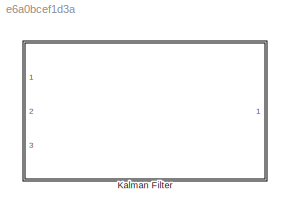
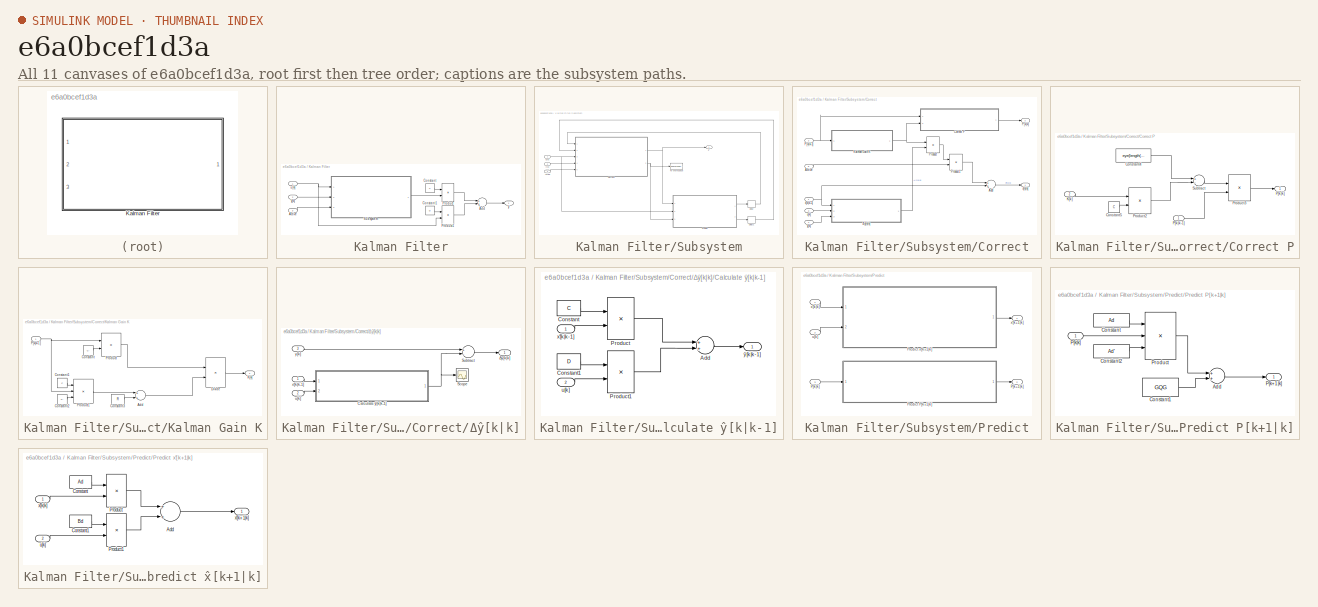
[diagram: thumbnail index - all 11 canvases of the model, root first then tree order]
MODEL slx_e6a0bcef1d3a
KIND model
CONFIG AbsTol = auto
CONFIG EnableMultiTasking = off
CONFIG FixedStep = auto
CONFIG MaxStep = auto
CONFIG MinStep = auto
CONFIG RelTol = 1e-3
CONFIG SampleTimeConstraint = Unconstrained
CONFIG Solver = VariableStepAuto
CONFIG SolverName = VariableStepAuto
CONFIG StartTime = 0.0
CONFIG StopTime = 10.0
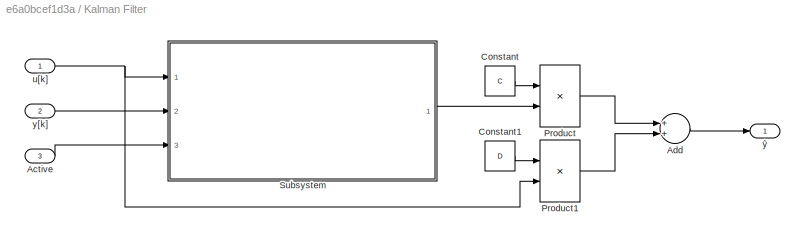
BLOCK [SubSystem] Kalman Filter
  Ports = [3, 1]
  RequestExecContextInheritance = off
BLOCK [Inport] Kalman Filter/Active
  IconDisplay = Port number
  Port = 3
BLOCK [Sum] Kalman Filter/Add
  InputSameDT = off
  OutDataTypeStr = Inherit: Inherit via internal rule
  Ports = [2, 1]
  SaturateOnIntegerOverflow = off
BLOCK [Constant] Kalman Filter/Constant
  Value = C
  VectorParams1D = off
BLOCK [Constant] Kalman Filter/Constant1
  Value = D
  VectorParams1D = off
BLOCK [Product] Kalman Filter/Product
  InputSameDT = off
  Multiplication = Matrix(*)
  OutDataTypeStr = Inherit: Inherit via internal rule
  Ports = [2, 1]
  RndMeth = Floor
  SaturateOnIntegerOverflow = off
BLOCK [Product] Kalman Filter/Product1
  InputSameDT = off
  Multiplication = Matrix(*)
  OutDataTypeStr = Inherit: Inherit via internal rule
  Ports = [2, 1]
  RndMeth = Floor
  SaturateOnIntegerOverflow = off
BLOCK [SubSystem] Kalman Filter/Subsystem
  Ports = [3, 1]
  RequestExecContextInheritance = off
BLOCK [Inport] Kalman Filter/Subsystem/Active
  IconDisplay = Port number
  Port = 3
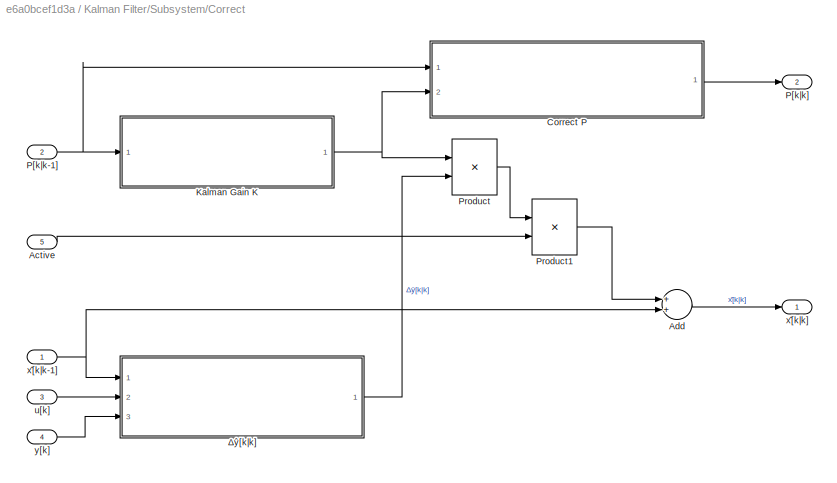
BLOCK [SubSystem] Kalman Filter/Subsystem/Correct
  Ports = [5, 2]
  RequestExecContextInheritance = off
BLOCK [Inport] Kalman Filter/Subsystem/Correct/Active
  IconDisplay = Port number
  Port = 5
BLOCK [Sum] Kalman Filter/Subsystem/Correct/Add
  InputSameDT = off
  OutDataTypeStr = Inherit: Inherit via internal rule
  Ports = [2, 1]
  SaturateOnIntegerOverflow = off
BLOCK [SubSystem] Kalman Filter/Subsystem/Correct/Correct P
  Ports = [2, 1]
  RequestExecContextInheritance = off
BLOCK [Constant] Kalman Filter/Subsystem/Correct/Correct P/Constant4
  Value = eye(length(C))
  VectorParams1D = off
BLOCK [Constant] Kalman Filter/Subsystem/Correct/Correct P/Constant5
  Value = C
  VectorParams1D = off
BLOCK [Inport] Kalman Filter/Subsystem/Correct/Correct P/K[k]
  IconDisplay = Port number
  Port = 2
BLOCK [Inport] Kalman Filter/Subsystem/Correct/Correct P/P[k|k-1]
  IconDisplay = Port number
BLOCK [Outport] Kalman Filter/Subsystem/Correct/Correct P/P[k|k]
  IconDisplay = Port number
BLOCK [Product] Kalman Filter/Subsystem/Correct/Correct P/Product2
  InputSameDT = off
  Multiplication = Matrix(*)
  OutDataTypeStr = Inherit: Inherit via internal rule
  Ports = [2, 1]
  RndMeth = Floor
  SaturateOnIntegerOverflow = off
BLOCK [Product] Kalman Filter/Subsystem/Correct/Correct P/Product3
  InputSameDT = off
  Multiplication = Matrix(*)
  OutDataTypeStr = Inherit: Inherit via internal rule
  Ports = [2, 1]
  RndMeth = Floor
  SaturateOnIntegerOverflow = off
BLOCK [Sum] Kalman Filter/Subsystem/Correct/Correct P/Subtract
  InputSameDT = off
  Inputs = +-
  OutDataTypeStr = Inherit: Inherit via internal rule
  Ports = [2, 1]
  SaturateOnIntegerOverflow = off
BLOCK [SubSystem] Kalman Filter/Subsystem/Correct/Kalman Gain K
  Ports = [1, 1]
  RequestExecContextInheritance = off
BLOCK [Sum] Kalman Filter/Subsystem/Correct/Kalman Gain K/Add
  InputSameDT = off
  OutDataTypeStr = Inherit: Inherit via internal rule
  Ports = [2, 1]
  SaturateOnIntegerOverflow = off
BLOCK [Constant] Kalman Filter/Subsystem/Correct/Kalman Gain K/Constant
  Value = C'
  VectorParams1D = off
BLOCK [Constant] Kalman Filter/Subsystem/Correct/Kalman Gain K/Constant1
  Value = C
  VectorParams1D = off
BLOCK [Constant] Kalman Filter/Subsystem/Correct/Kalman Gain K/Constant2
  Value = C'
  VectorParams1D = off
BLOCK [Constant] Kalman Filter/Subsystem/Correct/Kalman Gain K/Constant3
  Value = R
  VectorParams1D = off
BLOCK [Product] Kalman Filter/Subsystem/Correct/Kalman Gain K/Divide
  InputSameDT = off
  Inputs = */
  Multiplication = Matrix(*)
  OutDataTypeStr = Inherit: Inherit via internal rule
  Ports = [2, 1]
  RndMeth = Floor
  SaturateOnIntegerOverflow = off
BLOCK [Outport] Kalman Filter/Subsystem/Correct/Kalman Gain K/K[k]
  IconDisplay = Port number
BLOCK [Inport] Kalman Filter/Subsystem/Correct/Kalman Gain K/P[k|k-1]
  IconDisplay = Port number
BLOCK [Product] Kalman Filter/Subsystem/Correct/Kalman Gain K/Product
  InputSameDT = off
  Multiplication = Matrix(*)
  OutDataTypeStr = Inherit: Inherit via internal rule
  Ports = [2, 1]
  RndMeth = Floor
  SaturateOnIntegerOverflow = off
BLOCK [Product] Kalman Filter/Subsystem/Correct/Kalman Gain K/Product1
  InputSameDT = off
  Inputs = 3
  Multiplication = Matrix(*)
  OutDataTypeStr = Inherit: Inherit via internal rule
  Ports = [3, 1]
  RndMeth = Floor
  SaturateOnIntegerOverflow = off
BLOCK [Inport] Kalman Filter/Subsystem/Correct/P[k|k-1]
  IconDisplay = Port number
  Port = 2
BLOCK [Outport] Kalman Filter/Subsystem/Correct/P[k|k]
  IconDisplay = Port number
  Port = 2
BLOCK [Product] Kalman Filter/Subsystem/Correct/Product
  InputSameDT = off
  Multiplication = Matrix(*)
  OutDataTypeStr = Inherit: Inherit via internal rule
  Ports = [2, 1]
  RndMeth = Floor
  SaturateOnIntegerOverflow = off
BLOCK [Product] Kalman Filter/Subsystem/Correct/Product1
  InputSameDT = off
  Multiplication = Matrix(*)
  OutDataTypeStr = Inherit: Inherit via internal rule
  Ports = [2, 1]
  RndMeth = Floor
  SaturateOnIntegerOverflow = off
BLOCK [Inport] Kalman Filter/Subsystem/Correct/u[k]
  IconDisplay = Port number
  Port = 3
BLOCK [Inport] Kalman Filter/Subsystem/Correct/x̂[k|k-1]
  IconDisplay = Port number
BLOCK [Outport] Kalman Filter/Subsystem/Correct/x̂[k|k]
  IconDisplay = Port number
BLOCK [Inport] Kalman Filter/Subsystem/Correct/y[k]
  IconDisplay = Port number
  Port = 4
BLOCK [SubSystem] Kalman Filter/Subsystem/Correct/Δŷ[k|k]
  Ports = [3, 1]
  RequestExecContextInheritance = off
BLOCK [SubSystem] Kalman Filter/Subsystem/Correct/Δŷ[k|k]/Calculate ŷ[k|k-1]
  Ports = [2, 1]
  RequestExecContextInheritance = off
BLOCK [Sum] Kalman Filter/Subsystem/Correct/Δŷ[k|k]/Calculate ŷ[k|k-1]/Add
  InputSameDT = off
  OutDataTypeStr = Inherit: Inherit via internal rule
  Ports = [2, 1]
  SaturateOnIntegerOverflow = off
BLOCK [Constant] Kalman Filter/Subsystem/Correct/Δŷ[k|k]/Calculate ŷ[k|k-1]/Constant
  Value = C
  VectorParams1D = off
BLOCK [Constant] Kalman Filter/Subsystem/Correct/Δŷ[k|k]/Calculate ŷ[k|k-1]/Constant1
  Value = D
  VectorParams1D = off
BLOCK [Product] Kalman Filter/Subsystem/Correct/Δŷ[k|k]/Calculate ŷ[k|k-1]/Product
  InputSameDT = off
  Multiplication = Matrix(*)
  OutDataTypeStr = Inherit: Inherit via internal rule
  Ports = [2, 1]
  RndMeth = Floor
  SaturateOnIntegerOverflow = off
BLOCK [Product] Kalman Filter/Subsystem/Correct/Δŷ[k|k]/Calculate ŷ[k|k-1]/Product1
  InputSameDT = off
  Multiplication = Matrix(*)
  OutDataTypeStr = Inherit: Inherit via internal rule
  Ports = [2, 1]
  RndMeth = Floor
  SaturateOnIntegerOverflow = off
BLOCK [Inport] Kalman Filter/Subsystem/Correct/Δŷ[k|k]/Calculate ŷ[k|k-1]/u[k]
  IconDisplay = Port number
  Port = 2
BLOCK [Inport] Kalman Filter/Subsystem/Correct/Δŷ[k|k]/Calculate ŷ[k|k-1]/x̂[k|k-1]
  IconDisplay = Port number
BLOCK [Outport] Kalman Filter/Subsystem/Correct/Δŷ[k|k]/Calculate ŷ[k|k-1]/ŷ[k|k-1]
  IconDisplay = Port number
BLOCK [Scope] Kalman Filter/Subsystem/Correct/Δŷ[k|k]/Scope
  Floating = off
  NumInputPorts = 1
  Ports = [1]
  ScopeSpecificationString = Simulink.scopes.TimeScopeBlockCfg('CurrentConfiguration', extmgr.ConfigurationSet(extmgr.Configuration('Core','General UI',true),extmgr.Configuration('Core','Source UI',true),extmgr.Configuration('Sources','WiredSimulink',true,'DataLoggingVariableName','ScopeData2'),extmgr.Configuration('Visuals','Time Domain',true,'SerializedDisplays',{struct('MinYLimReal','-244.28559','MaxYLimReal','99.36507','Y...<+1418ch>
BLOCK [Sum] Kalman Filter/Subsystem/Correct/Δŷ[k|k]/Subtract
  InputSameDT = off
  Inputs = +-
  OutDataTypeStr = Inherit: Inherit via internal rule
  Ports = [2, 1]
  SaturateOnIntegerOverflow = off
BLOCK [Inport] Kalman Filter/Subsystem/Correct/Δŷ[k|k]/u[k]
  IconDisplay = Port number
  Port = 2
BLOCK [Inport] Kalman Filter/Subsystem/Correct/Δŷ[k|k]/x̂[k|k-1]
  IconDisplay = Port number
BLOCK [Inport] Kalman Filter/Subsystem/Correct/Δŷ[k|k]/y[k]
  IconDisplay = Port number
  Port = 3
BLOCK [Outport] Kalman Filter/Subsystem/Correct/Δŷ[k|k]/Δŷ[k|k]
  IconDisplay = Port number
BLOCK [Delay] Kalman Filter/Subsystem/Delay
  DelayLength = 1
  InitialCondition = x0
  InputPortMap = u0
  Ports = [1, 1]
BLOCK [Delay] Kalman Filter/Subsystem/Delay1
  DelayLength = 1
  InitialCondition = P0
  InputPortMap = u0
  Ports = [1, 1]
BLOCK [SubSystem] Kalman Filter/Subsystem/Predict
  Ports = [3, 2]
  RequestExecContextInheritance = off
BLOCK [Outport] Kalman Filter/Subsystem/Predict/P[k+1|k]
  IconDisplay = Port number
  Port = 2
BLOCK [Inport] Kalman Filter/Subsystem/Predict/P[k|k]
  IconDisplay = Port number
  Port = 3
BLOCK [SubSystem] Kalman Filter/Subsystem/Predict/Predict P[k+1|k]
  Ports = [1, 1]
  RequestExecContextInheritance = off
BLOCK [Sum] Kalman Filter/Subsystem/Predict/Predict P[k+1|k]/Add
  InputSameDT = off
  OutDataTypeStr = Inherit: Inherit via internal rule
  Ports = [2, 1]
  SaturateOnIntegerOverflow = off
BLOCK [Constant] Kalman Filter/Subsystem/Predict/Predict P[k+1|k]/Constant
  Value = Ad
  VectorParams1D = off
BLOCK [Constant] Kalman Filter/Subsystem/Predict/Predict P[k+1|k]/Constant1
  Value = GQG
  VectorParams1D = off
BLOCK [Constant] Kalman Filter/Subsystem/Predict/Predict P[k+1|k]/Constant2
  Value = Ad'
  VectorParams1D = off
BLOCK [Outport] Kalman Filter/Subsystem/Predict/Predict P[k+1|k]/P[k+1|k]
  IconDisplay = Port number
BLOCK [Inport] Kalman Filter/Subsystem/Predict/Predict P[k+1|k]/P[k|k]
  IconDisplay = Port number
BLOCK [Product] Kalman Filter/Subsystem/Predict/Predict P[k+1|k]/Product
  InputSameDT = off
  Inputs = 3
  Multiplication = Matrix(*)
  OutDataTypeStr = Inherit: Inherit via internal rule
  Ports = [3, 1]
  RndMeth = Floor
  SaturateOnIntegerOverflow = off
BLOCK [SubSystem] Kalman Filter/Subsystem/Predict/Predict x̂[k+1|k]
  Ports = [2, 1]
  RequestExecContextInheritance = off
BLOCK [Sum] Kalman Filter/Subsystem/Predict/Predict x̂[k+1|k]/Add
  InputSameDT = off
  OutDataTypeStr = Inherit: Inherit via internal rule
  Ports = [2, 1]
  SaturateOnIntegerOverflow = off
BLOCK [Constant] Kalman Filter/Subsystem/Predict/Predict x̂[k+1|k]/Constant
  Value = Ad
  VectorParams1D = off
BLOCK [Constant] Kalman Filter/Subsystem/Predict/Predict x̂[k+1|k]/Constant1
  Value = Bd
  VectorParams1D = off
BLOCK [Product] Kalman Filter/Subsystem/Predict/Predict x̂[k+1|k]/Product
  InputSameDT = off
  Multiplication = Matrix(*)
  OutDataTypeStr = Inherit: Inherit via internal rule
  Ports = [2, 1]
  RndMeth = Floor
  SaturateOnIntegerOverflow = off
BLOCK [Product] Kalman Filter/Subsystem/Predict/Predict x̂[k+1|k]/Product1
  InputSameDT = off
  Multiplication = Matrix(*)
  OutDataTypeStr = Inherit: Inherit via internal rule
  Ports = [2, 1]
  RndMeth = Floor
  SaturateOnIntegerOverflow = off
BLOCK [Inport] Kalman Filter/Subsystem/Predict/Predict x̂[k+1|k]/u[k]
  IconDisplay = Port number
  Port = 2
BLOCK [Outport] Kalman Filter/Subsystem/Predict/Predict x̂[k+1|k]/x̂[k+1|k]
  IconDisplay = Port number
BLOCK [Inport] Kalman Filter/Subsystem/Predict/Predict x̂[k+1|k]/x̂[k|k]
  IconDisplay = Port number
BLOCK [Inport] Kalman Filter/Subsystem/Predict/u[k]
  IconDisplay = Port number
  Port = 2
BLOCK [Outport] Kalman Filter/Subsystem/Predict/x̂[k+1|k]
  IconDisplay = Port number
BLOCK [Inport] Kalman Filter/Subsystem/Predict/x̂[k|k]
  IconDisplay = Port number
BLOCK [ToWorkspace] Kalman Filter/Subsystem/To Workspace
  FixptAsFi = on
  MaxDataPoints = 1
  Ports = [1]
  SampleTime = -1
  VariableName = Variance
BLOCK [Inport] Kalman Filter/Subsystem/u[k]
  IconDisplay = Port number
BLOCK [Outport] Kalman Filter/Subsystem/x̂
  IconDisplay = Port number
BLOCK [Inport] Kalman Filter/Subsystem/y[k]
  IconDisplay = Port number
  Port = 2
BLOCK [Inport] Kalman Filter/u[k]
  IconDisplay = Port number
BLOCK [Inport] Kalman Filter/y[k]
  IconDisplay = Port number
  Port = 2
BLOCK [Outport] Kalman Filter/ŷ
  IconDisplay = Port number
LINE Kalman Filter/Active:1 -> Kalman Filter/Subsystem:3
LINE Kalman Filter/Add:1 -> Kalman Filter/ŷ:1
LINE Kalman Filter/Constant1:1 -> Kalman Filter/Product1:1
LINE Kalman Filter/Constant:1 -> Kalman Filter/Product:1
LINE Kalman Filter/Product1:1 -> Kalman Filter/Add:2
LINE Kalman Filter/Product:1 -> Kalman Filter/Add:1
LINE Kalman Filter/Subsystem/Active:1 -> Kalman Filter/Subsystem/Correct:5
LINE Kalman Filter/Subsystem/Correct/Active:1 -> Kalman Filter/Subsystem/Correct/Product1:2
LINE Kalman Filter/Subsystem/Correct/Add:1 -> Kalman Filter/Subsystem/Correct/x̂[k|k]:1
LINE Kalman Filter/Subsystem/Correct/Correct P/Constant4:1 -> Kalman Filter/Subsystem/Correct/Correct P/Subtract:1
LINE Kalman Filter/Subsystem/Correct/Correct P/Constant5:1 -> Kalman Filter/Subsystem/Correct/Correct P/Product2:2
LINE Kalman Filter/Subsystem/Correct/Correct P/K[k]:1 -> Kalman Filter/Subsystem/Correct/Correct P/Product2:1
LINE Kalman Filter/Subsystem/Correct/Correct P/P[k|k-1]:1 -> Kalman Filter/Subsystem/Correct/Correct P/Product3:2
LINE Kalman Filter/Subsystem/Correct/Correct P/Product2:1 -> Kalman Filter/Subsystem/Correct/Correct P/Subtract:2
LINE Kalman Filter/Subsystem/Correct/Correct P/Product3:1 -> Kalman Filter/Subsystem/Correct/Correct P/P[k|k]:1
LINE Kalman Filter/Subsystem/Correct/Correct P/Subtract:1 -> Kalman Filter/Subsystem/Correct/Correct P/Product3:1
LINE Kalman Filter/Subsystem/Correct/Correct P:1 -> Kalman Filter/Subsystem/Correct/P[k|k]:1
LINE Kalman Filter/Subsystem/Correct/Kalman Gain K/Add:1 -> Kalman Filter/Subsystem/Correct/Kalman Gain K/Divide:2
LINE Kalman Filter/Subsystem/Correct/Kalman Gain K/Constant1:1 -> Kalman Filter/Subsystem/Correct/Kalman Gain K/Product1:1
LINE Kalman Filter/Subsystem/Correct/Kalman Gain K/Constant2:1 -> Kalman Filter/Subsystem/Correct/Kalman Gain K/Product1:3
LINE Kalman Filter/Subsystem/Correct/Kalman Gain K/Constant3:1 -> Kalman Filter/Subsystem/Correct/Kalman Gain K/Add:2
LINE Kalman Filter/Subsystem/Correct/Kalman Gain K/Constant:1 -> Kalman Filter/Subsystem/Correct/Kalman Gain K/Product:2
LINE Kalman Filter/Subsystem/Correct/Kalman Gain K/Divide:1 -> Kalman Filter/Subsystem/Correct/Kalman Gain K/K[k]:1
NET Kalman Filter/Subsystem/Correct/Kalman Gain K/P[k|k-1]:1 -> Kalman Filter/Subsystem/Correct/Kalman Gain K/Product1:2, Kalman Filter/Subsystem/Correct/Kalman Gain K/Product:1
LINE Kalman Filter/Subsystem/Correct/Kalman Gain K/Product1:1 -> Kalman Filter/Subsystem/Correct/Kalman Gain K/Add:1
LINE Kalman Filter/Subsystem/Correct/Kalman Gain K/Product:1 -> Kalman Filter/Subsystem/Correct/Kalman Gain K/Divide:1
NET Kalman Filter/Subsystem/Correct/Kalman Gain K:1 -> Kalman Filter/Subsystem/Correct/Correct P:2, Kalman Filter/Subsystem/Correct/Product:1
NET Kalman Filter/Subsystem/Correct/P[k|k-1]:1 -> Kalman Filter/Subsystem/Correct/Correct P:1, Kalman Filter/Subsystem/Correct/Kalman Gain K:1
LINE Kalman Filter/Subsystem/Correct/Product1:1 -> Kalman Filter/Subsystem/Correct/Add:1
LINE Kalman Filter/Subsystem/Correct/Product:1 -> Kalman Filter/Subsystem/Correct/Product1:1
LINE Kalman Filter/Subsystem/Correct/u[k]:1 -> Kalman Filter/Subsystem/Correct/Δŷ[k|k]:2
NET Kalman Filter/Subsystem/Correct/x̂[k|k-1]:1 -> Kalman Filter/Subsystem/Correct/Add:2, Kalman Filter/Subsystem/Correct/Δŷ[k|k]:1
LINE Kalman Filter/Subsystem/Correct/y[k]:1 -> Kalman Filter/Subsystem/Correct/Δŷ[k|k]:3
LINE Kalman Filter/Subsystem/Correct/Δŷ[k|k]/Calculate ŷ[k|k-1]/Add:1 -> Kalman Filter/Subsystem/Correct/Δŷ[k|k]/Calculate ŷ[k|k-1]/ŷ[k|k-1]:1
LINE Kalman Filter/Subsystem/Correct/Δŷ[k|k]/Calculate ŷ[k|k-1]/Constant1:1 -> Kalman Filter/Subsystem/Correct/Δŷ[k|k]/Calculate ŷ[k|k-1]/Product1:1
LINE Kalman Filter/Subsystem/Correct/Δŷ[k|k]/Calculate ŷ[k|k-1]/Constant:1 -> Kalman Filter/Subsystem/Correct/Δŷ[k|k]/Calculate ŷ[k|k-1]/Product:1
LINE Kalman Filter/Subsystem/Correct/Δŷ[k|k]/Calculate ŷ[k|k-1]/Product1:1 -> Kalman Filter/Subsystem/Correct/Δŷ[k|k]/Calculate ŷ[k|k-1]/Add:2
LINE Kalman Filter/Subsystem/Correct/Δŷ[k|k]/Calculate ŷ[k|k-1]/Product:1 -> Kalman Filter/Subsystem/Correct/Δŷ[k|k]/Calculate ŷ[k|k-1]/Add:1
LINE Kalman Filter/Subsystem/Correct/Δŷ[k|k]/Calculate ŷ[k|k-1]/u[k]:1 -> Kalman Filter/Subsystem/Correct/Δŷ[k|k]/Calculate ŷ[k|k-1]/Product1:2
LINE Kalman Filter/Subsystem/Correct/Δŷ[k|k]/Calculate ŷ[k|k-1]/x̂[k|k-1]:1 -> Kalman Filter/Subsystem/Correct/Δŷ[k|k]/Calculate ŷ[k|k-1]/Product:2
NET Kalman Filter/Subsystem/Correct/Δŷ[k|k]/Calculate ŷ[k|k-1]:1 -> Kalman Filter/Subsystem/Correct/Δŷ[k|k]/Scope:1, Kalman Filter/Subsystem/Correct/Δŷ[k|k]/Subtract:2
LINE Kalman Filter/Subsystem/Correct/Δŷ[k|k]/Subtract:1 -> Kalman Filter/Subsystem/Correct/Δŷ[k|k]/Δŷ[k|k]:1
LINE Kalman Filter/Subsystem/Correct/Δŷ[k|k]/u[k]:1 -> Kalman Filter/Subsystem/Correct/Δŷ[k|k]/Calculate ŷ[k|k-1]:2
LINE Kalman Filter/Subsystem/Correct/Δŷ[k|k]/x̂[k|k-1]:1 -> Kalman Filter/Subsystem/Correct/Δŷ[k|k]/Calculate ŷ[k|k-1]:1
LINE Kalman Filter/Subsystem/Correct/Δŷ[k|k]/y[k]:1 -> Kalman Filter/Subsystem/Correct/Δŷ[k|k]/Subtract:1
LINE Kalman Filter/Subsystem/Correct/Δŷ[k|k]:1 -> Kalman Filter/Subsystem/Correct/Product:2
NET Kalman Filter/Subsystem/Correct:1 -> Kalman Filter/Subsystem/Predict:1, Kalman Filter/Subsystem/x̂:1
NET Kalman Filter/Subsystem/Correct:2 -> Kalman Filter/Subsystem/Predict:3, Kalman Filter/Subsystem/To Workspace:1
LINE Kalman Filter/Subsystem/Delay1:1 -> Kalman Filter/Subsystem/Correct:2
LINE Kalman Filter/Subsystem/Delay:1 -> Kalman Filter/Subsystem/Correct:1
LINE Kalman Filter/Subsystem/Predict/P[k|k]:1 -> Kalman Filter/Subsystem/Predict/Predict P[k+1|k]:1
LINE Kalman Filter/Subsystem/Predict/Predict P[k+1|k]/Add:1 -> Kalman Filter/Subsystem/Predict/Predict P[k+1|k]/P[k+1|k]:1
LINE Kalman Filter/Subsystem/Predict/Predict P[k+1|k]/Constant1:1 -> Kalman Filter/Subsystem/Predict/Predict P[k+1|k]/Add:2
LINE Kalman Filter/Subsystem/Predict/Predict P[k+1|k]/Constant2:1 -> Kalman Filter/Subsystem/Predict/Predict P[k+1|k]/Product:3
LINE Kalman Filter/Subsystem/Predict/Predict P[k+1|k]/Constant:1 -> Kalman Filter/Subsystem/Predict/Predict P[k+1|k]/Product:1
LINE Kalman Filter/Subsystem/Predict/Predict P[k+1|k]/P[k|k]:1 -> Kalman Filter/Subsystem/Predict/Predict P[k+1|k]/Product:2
LINE Kalman Filter/Subsystem/Predict/Predict P[k+1|k]/Product:1 -> Kalman Filter/Subsystem/Predict/Predict P[k+1|k]/Add:1
LINE Kalman Filter/Subsystem/Predict/Predict P[k+1|k]:1 -> Kalman Filter/Subsystem/Predict/P[k+1|k]:1
LINE Kalman Filter/Subsystem/Predict/Predict x̂[k+1|k]/Add:1 -> Kalman Filter/Subsystem/Predict/Predict x̂[k+1|k]/x̂[k+1|k]:1
LINE Kalman Filter/Subsystem/Predict/Predict x̂[k+1|k]/Constant1:1 -> Kalman Filter/Subsystem/Predict/Predict x̂[k+1|k]/Product1:1
LINE Kalman Filter/Subsystem/Predict/Predict x̂[k+1|k]/Constant:1 -> Kalman Filter/Subsystem/Predict/Predict x̂[k+1|k]/Product:1
LINE Kalman Filter/Subsystem/Predict/Predict x̂[k+1|k]/Product1:1 -> Kalman Filter/Subsystem/Predict/Predict x̂[k+1|k]/Add:2
LINE Kalman Filter/Subsystem/Predict/Predict x̂[k+1|k]/Product:1 -> Kalman Filter/Subsystem/Predict/Predict x̂[k+1|k]/Add:1
LINE Kalman Filter/Subsystem/Predict/Predict x̂[k+1|k]/u[k]:1 -> Kalman Filter/Subsystem/Predict/Predict x̂[k+1|k]/Product1:2
LINE Kalman Filter/Subsystem/Predict/Predict x̂[k+1|k]/x̂[k|k]:1 -> Kalman Filter/Subsystem/Predict/Predict x̂[k+1|k]/Product:2
LINE Kalman Filter/Subsystem/Predict/Predict x̂[k+1|k]:1 -> Kalman Filter/Subsystem/Predict/x̂[k+1|k]:1
LINE Kalman Filter/Subsystem/Predict/u[k]:1 -> Kalman Filter/Subsystem/Predict/Predict x̂[k+1|k]:2
LINE Kalman Filter/Subsystem/Predict/x̂[k|k]:1 -> Kalman Filter/Subsystem/Predict/Predict x̂[k+1|k]:1
LINE Kalman Filter/Subsystem/Predict:1 -> Kalman Filter/Subsystem/Delay:1
LINE Kalman Filter/Subsystem/Predict:2 -> Kalman Filter/Subsystem/Delay1:1
NET Kalman Filter/Subsystem/u[k]:1 -> Kalman Filter/Subsystem/Correct:3, Kalman Filter/Subsystem/Predict:2
LINE Kalman Filter/Subsystem/y[k]:1 -> Kalman Filter/Subsystem/Correct:4
LINE Kalman Filter/Subsystem:1 -> Kalman Filter/Product:2
NET Kalman Filter/u[k]:1 -> Kalman Filter/Product1:2, Kalman Filter/Subsystem:1
LINE Kalman Filter/y[k]:1 -> Kalman Filter/Subsystem:2
note: NET lines group one-source signal fan-out (src -> all destinations, sorted); 1:1 wires keep LINE
